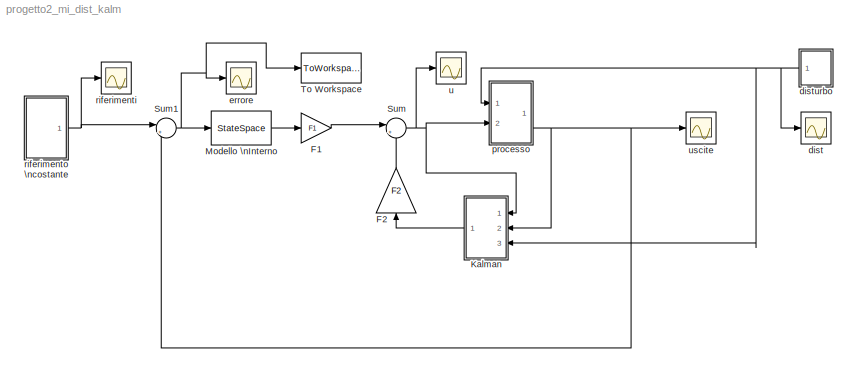
MODEL progetto2_mi_dist_kalm
KIND model
BLOCK [Gain] F1
  Gain = F1
  Multiplication = Matrix(K*u) (u vector)
  OutDataTypeStr = Inherit: Inherit via internal rule
  ParamDataTypeStr = Inherit: Inherit via internal rule
  SID = 16
  SaturateOnIntegerOverflow = off
BLOCK [Gain] F2
  Gain = F2
  Multiplication = Matrix(K*u) (u vector)
  OutDataTypeStr = Inherit: Inherit via internal rule
  ParamDataTypeStr = Inherit: Inherit via internal rule
  SID = 17
  SaturateOnIntegerOverflow = off
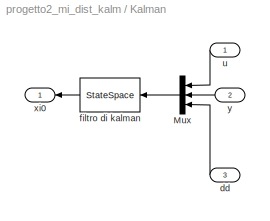
BLOCK [SubSystem] Kalman
  FunctionWithSeparateData = off
  MaskHideContents = off
  MinAlgLoopOccurrences = off
  Opaque = off
  Ports = [3, 1]
  PropExecContextOutsideSubsystem = off
  RTWSystemCode = Auto
  RequestExecContextInheritance = off
  SID = 4
BLOCK [Mux] Kalman/Mux
  DisplayOption = bar
  Inputs = [2 2 1]
  Ports = [3, 1]
  SID = 1
BLOCK [Inport] Kalman/dd
  IconDisplay = Port number
  Port = 3
  SID = 55
BLOCK [StateSpace] Kalman/filtro di kalman
  A = Aoss
  B = Boss
  C = Coss
  D = Doss
  SID = 3
BLOCK [Inport] Kalman/u
  IconDisplay = Port number
  SID = 5
BLOCK [Outport] Kalman/xi0
  IconDisplay = Port number
  SID = 6
BLOCK [Inport] Kalman/y
  IconDisplay = Port number
  Port = 2
  SID = 7
BLOCK [StateSpace] Modello \nInterno
  A = AMI
  B = BMI
  C = CMI
  D = DMI
  SID = 21
BLOCK [Sum] Sum
  IconShape = round
  InputSameDT = off
  Inputs = |++
  OutDataTypeStr = Inherit: Inherit via internal rule
  Ports = [2, 1]
  SID = 23
  SaturateOnIntegerOverflow = off
BLOCK [Sum] Sum1
  IconShape = round
  InputSameDT = off
  Inputs = |+-
  OutDataTypeStr = Inherit: Inherit via internal rule
  Ports = [2, 1]
  SID = 24
  SaturateOnIntegerOverflow = off
BLOCK [ToWorkspace] To Workspace
  MaxDataPoints = inf
  Ports = [1]
  SID = 59
  SampleTime = -1
  SaveFormat = Structure
  VariableName = simout
BLOCK [Scope] dist
  DataFormat = StructureWithTime
  Floating = off
  LimitDataPoints = off
  NumInputPorts = 1
  Ports = [1]
  SID = 54
  SampleTime = 0
  SaveName = ScopeData5
  ShowLegends = off
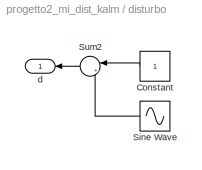
BLOCK [SubSystem] disturbo
  FunctionWithSeparateData = off
  MaskHideContents = off
  MinAlgLoopOccurrences = off
  Opaque = off
  Ports = [0, 1]
  PropExecContextOutsideSubsystem = off
  RTWSystemCode = Auto
  RequestExecContextInheritance = off
  SID = 50
BLOCK [Constant] disturbo/Constant
  SID = 47
BLOCK [Sin] disturbo/Sine Wave
  Frequency = omega
  Ports = [0, 1]
  SID = 48
  SampleTime = 0
BLOCK [Sum] disturbo/Sum2
  IconShape = round
  InputSameDT = off
  Inputs = |++
  OutDataTypeStr = Inherit: Inherit via internal rule
  Ports = [2, 1]
  SID = 49
  SaturateOnIntegerOverflow = off
BLOCK [Outport] disturbo/d
  IconDisplay = Port number
  SID = 51
BLOCK [Scope] errore
  DataFormat = StructureWithTime
  Floating = off
  LimitDataPoints = off
  NumInputPorts = 1
  Ports = [1]
  SID = 27
  SampleTime = 0
  SaveName = ScopeData2
  ShowLegends = off
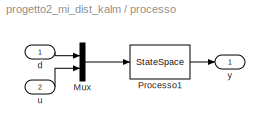
BLOCK [SubSystem] processo
  FunctionWithSeparateData = off
  MaskHideContents = off
  MinAlgLoopOccurrences = off
  Opaque = off
  Ports = [2, 1]
  PropExecContextOutsideSubsystem = off
  RTWSystemCode = Auto
  RequestExecContextInheritance = off
  SID = 43
BLOCK [Mux] processo/Mux
  DisplayOption = bar
  Inputs = [1 2]
  Ports = [2, 1]
  SID = 41
BLOCK [StateSpace] processo/Processo1
  A = A
  B = Bmod
  C = C
  D = Dmod
  SID = 42
BLOCK [Inport] processo/d
  IconDisplay = Port number
  SID = 44
BLOCK [Inport] processo/u
  IconDisplay = Port number
  Port = 2
  SID = 46
BLOCK [Outport] processo/y
  IconDisplay = Port number
  SID = 45
BLOCK [Scope] riferimenti
  DataFormat = StructureWithTime
  Floating = off
  LimitDataPoints = off
  NumInputPorts = 1
  Ports = [1]
  SID = 26
  SampleTime = 0
  SaveName = ScopeData1
  ShowLegends = off
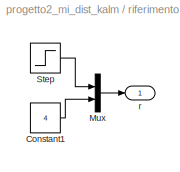
BLOCK [SubSystem] riferimento \ncostante
  FunctionWithSeparateData = off
  MaskHideContents = off
  MinAlgLoopOccurrences = off
  Opaque = off
  Ports = [0, 1]
  PropExecContextOutsideSubsystem = off
  RTWSystemCode = Auto
  RequestExecContextInheritance = off
  SID = 11
BLOCK [Constant] riferimento \ncostante/Constant1
  SID = 9
  Value = 4
BLOCK [Mux] riferimento \ncostante/Mux
  DisplayOption = bar
  Inputs = [1 1]
  Ports = [2, 1]
  SID = 10
BLOCK [Step] riferimento \ncostante/Step
  After = 12
  SID = 39
  SampleTime = 0
  Time = 10
BLOCK [Outport] riferimento \ncostante/r
  IconDisplay = Port number
  SID = 12
BLOCK [Scope] u
  DataFormat = StructureWithTime
  Floating = off
  LimitDataPoints = off
  NumInputPorts = 1
  Ports = [1]
  SID = 28
  SampleTime = 0
  SaveName = ScopeData3
  ShowLegends = off
BLOCK [Scope] uscite
  DataFormat = StructureWithTime
  Floating = off
  LimitDataPoints = off
  NumInputPorts = 1
  Ports = [1]
  SID = 25
  SampleTime = 0
  ShowLegends = off
LINE F1:1 -> Sum:1
LINE F2:1 -> Sum:2
LINE Kalman/Mux:1 -> Kalman/filtro di kalman:1
LINE Kalman/dd:1 -> Kalman/Mux:3
LINE Kalman/filtro di kalman:1 -> Kalman/xi0:1
LINE Kalman/u:1 -> Kalman/Mux:1
LINE Kalman/y:1 -> Kalman/Mux:2
LINE Kalman:1 -> F2:1
LINE Modello \nInterno:1 -> F1:1
NET Sum1:1 -> Modello \nInterno:1, To Workspace:1, errore:1
NET Sum:1 -> Kalman:1, processo:2, u:1
LINE disturbo/Constant:1 -> disturbo/Sum2:1
LINE disturbo/Sine Wave:1 -> disturbo/Sum2:2
LINE disturbo/Sum2:1 -> disturbo/d:1
NET disturbo:1 -> Kalman:3, dist:1, processo:1
LINE processo/Mux:1 -> processo/Processo1:1
LINE processo/Processo1:1 -> processo/y:1
LINE processo/d:1 -> processo/Mux:1
LINE processo/u:1 -> processo/Mux:2
NET processo:1 -> Kalman:2, Sum1:2, uscite:1
LINE riferimento \ncostante/Constant1:1 -> riferimento \ncostante/Mux:2
LINE riferimento \ncostante/Mux:1 -> riferimento \ncostante/r:1
LINE riferimento \ncostante/Step:1 -> riferimento \ncostante/Mux:1
NET riferimento \ncostante:1 -> Sum1:1, riferimenti:1
note: NET lines group one-source signal fan-out (src -> all destinations, sorted); 1:1 wires keep LINE
